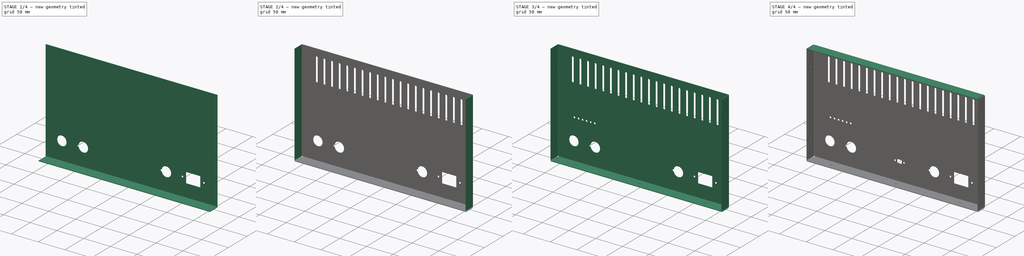
[diagram: build sequence overview — one tinted view per stage of 4, left to right]
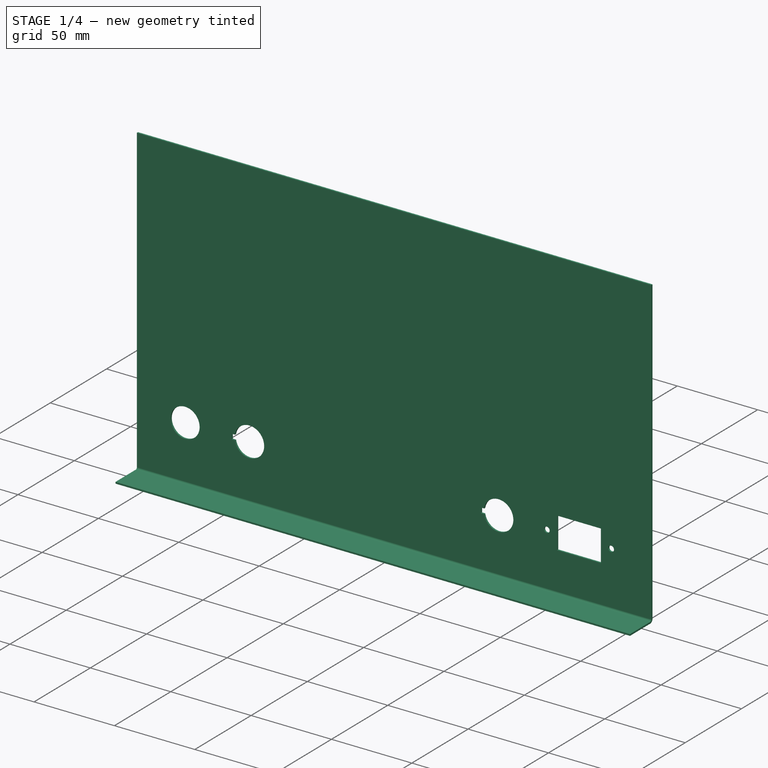
[diagram: stage 1 of 4 — iso view after this stage's code; geometry added in this stage tinted green]
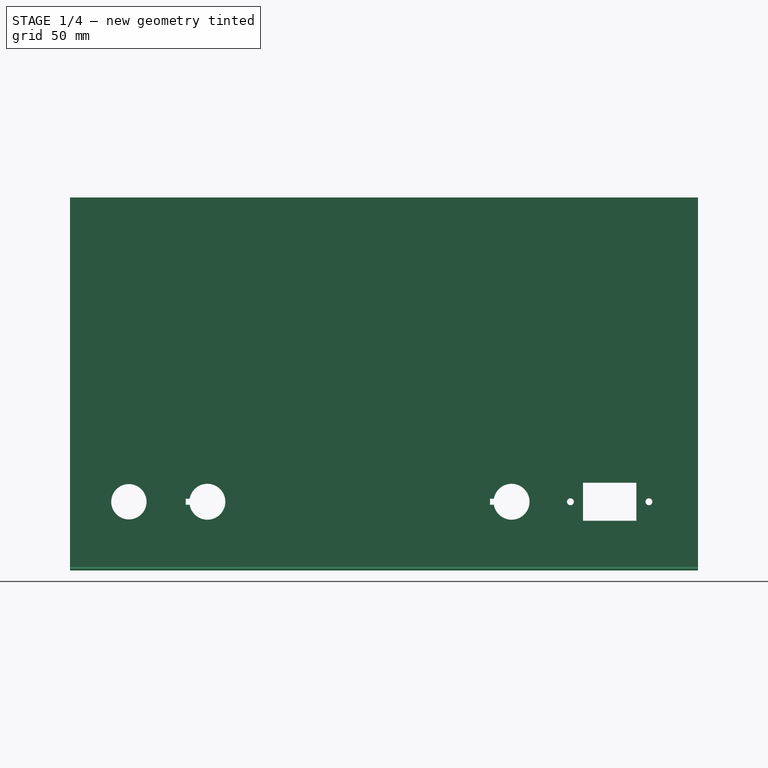
[diagram: stage 1 of 4 — front view after this stage's code; geometry added in this stage tinted green]
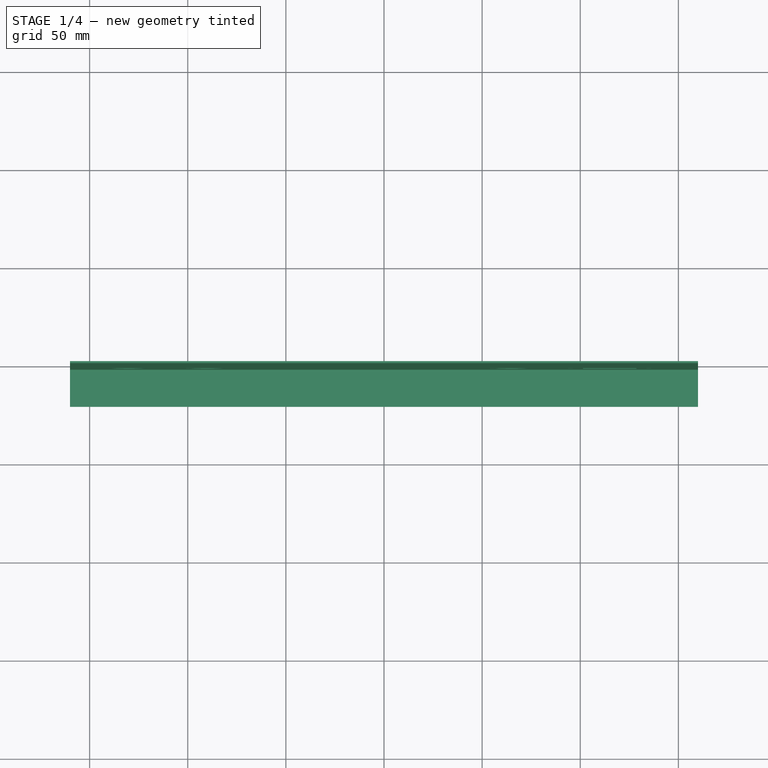
[diagram: stage 1 of 4 — top view after this stage's code; geometry added in this stage tinted green]
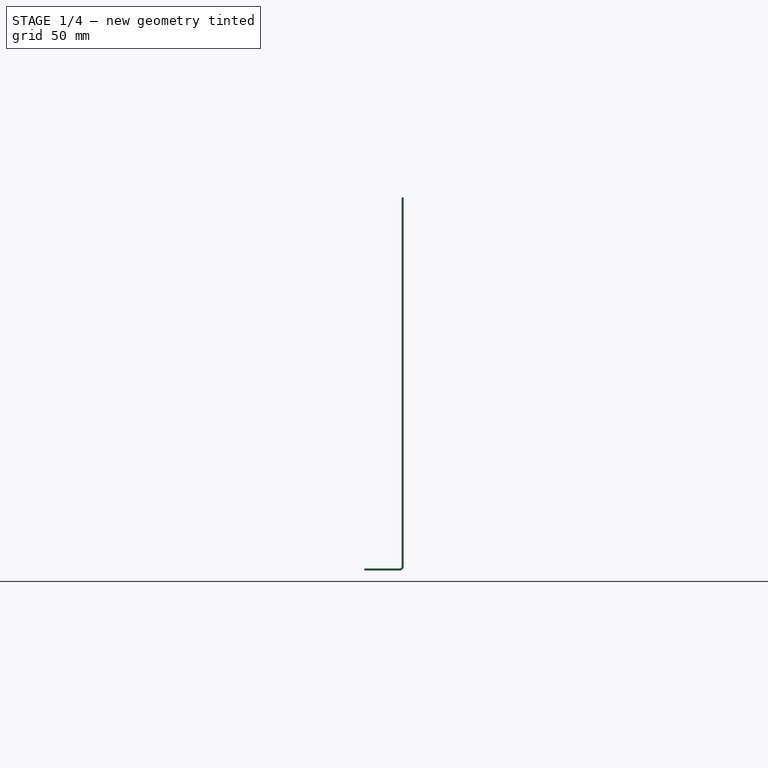
[diagram: stage 1 of 4 — right view after this stage's code; geometry added in this stage tinted green]
FCSTD DOCUMENT  (FreeCAD 1.0R39109 (Git))
Label: SEVER_BEDNA_ZP_320mm
License: All rights reserved
LicenseURL: http://en.wikipedia.org/wiki/All_rights_reserved
objects: Sketcher::SketchObject×6, PartDesign::Pocket×5, PartDesign::FeaturePython×3, PartDesign::Pad×1, PartDesign::LinearPattern×1, TechDraw::DrawSVGTemplate×1, TechDraw::DrawProjGroupItem×1, TechDraw::DrawPage×1, PartDesign::Body×1
note: 39 computed .brp shape members not serialized (recipe doc carries the construction recipe); baked Part::Feature solids carry a one-line shape summary decoded from their .brp

FEATURE [Sketcher::SketchObject] Sketch004  label="Sketch001"
  ArcFitTolerance = 1e-06
  FullyConstrained = true
  MakeInternals = false
  MapMode = 5
  Placement = pos=(0,198.5,-2.2e-14) rot=(0,0.707107,0.707107;3.14159rad)
  sketch-geometry (23):
    g0: Circle CenterX=130 CenterY=-60 CenterZ=0 NormalX=0 NormalY=0 NormalZ=1 AngleXU=0 Radius=9
    g1: LineSegment StartX=-128.6 StartY=-50.3 StartZ=0 EndX=-128.6 EndY=-69.7 EndZ=0
    g2: LineSegment StartX=-128.6 StartY=-69.7 StartZ=0 EndX=-101.4 EndY=-69.7 EndZ=0
    g3: LineSegment StartX=-101.4 StartY=-69.7 StartZ=0 EndX=-101.4 EndY=-50.3 EndZ=0
    g4: LineSegment StartX=-101.4 StartY=-50.3 StartZ=0 EndX=-128.6 EndY=-50.3 EndZ=0
    g5: LineSegment [constr] StartX=-115 StartY=-50.3 StartZ=0 EndX=-115 EndY=-69.7 EndZ=0
    g6: LineSegment [constr] StartX=-128.6 StartY=-60 StartZ=0 EndX=-101.4 EndY=-60 EndZ=0
    g7: Circle CenterX=-135 CenterY=-60 CenterZ=0 NormalX=0 NormalY=0 NormalZ=1 AngleXU=0 Radius=1.75
    g8: Circle CenterX=-95 CenterY=-60 CenterZ=0 NormalX=0 NormalY=0 NormalZ=1 AngleXU=0 Radius=1.75
    g9: ArcOfCircle CenterX=-65 CenterY=-60 CenterZ=0 NormalX=0 NormalY=0 NormalZ=1 AngleXU=0 Radius=9.15 StartAngle=0.17022 EndAngle=6.11297
    g10: LineSegment StartX=-55.9822 StartY=-61.55 StartZ=0 EndX=-54 EndY=-61.55 EndZ=0
    g11: LineSegment StartX=-54 StartY=-61.55 StartZ=0 EndX=-54 EndY=-58.45 EndZ=0
    g12: LineSegment StartX=-54 StartY=-58.45 StartZ=0 EndX=-55.9822 EndY=-58.45 EndZ=0
    g13: ArcOfCircle CenterX=90 CenterY=-60 CenterZ=0 NormalX=0 NormalY=0 NormalZ=1 AngleXU=0 Radius=9.15 StartAngle=0.17022 EndAngle=6.11297
    g14: LineSegment StartX=99.0178 StartY=-61.55 StartZ=0 EndX=101 EndY=-61.55 EndZ=0
    g15: LineSegment StartX=101 StartY=-61.55 StartZ=0 EndX=101 EndY=-58.45 EndZ=0
    g16: LineSegment StartX=101 StartY=-58.45 StartZ=0 EndX=99.0178 EndY=-58.45 EndZ=0
    g17: LineSegment StartX=-160 StartY=95 StartZ=0 EndX=-160 EndY=-95 EndZ=0
    g18: LineSegment StartX=-160 StartY=-95 StartZ=0 EndX=160 EndY=-95 EndZ=0
    g19: LineSegment StartX=160 StartY=-95 StartZ=0 EndX=160 EndY=95 EndZ=0
    g20: LineSegment StartX=160 StartY=95 StartZ=0 EndX=-160 EndY=95 EndZ=0
    g21: GeomPoint X=-54 Y=-60 Z=0
    g22: GeomPoint X=101 Y=-60 Z=0
  constraints (62):
    c: Coincident(g1,g2)
    c: Coincident(g2,g3)
    c: Coincident(g3,g4)
    c: Coincident(g4,g1)
    c: Vertical(g1)
    c: Vertical(g3)
    c: Horizontal(g2)
    c: Horizontal(g4)
    c: Symmetric(g4,g4,g5)
    c: Symmetric(g2,g2,g5)
    c: Symmetric(g1,g1,g6)
    c: Symmetric(g3,g3,g6)
    c: Equal(g7,g8)
    c: Symmetric(g7,g8,g5)
    c: Diameter(g7) = 3.5
    c: DistanceX(g7,g8) = 40
    c: DistanceX(g4,g4) = 27.2
    c: DistanceY(g3,g3) = 19.4
    c: Diameter(g0) = 18
    c: PointOnObject(g7,g6)
    c: Diameter(g9) = 18.3
    c: Coincident(g10,g11)
    c: Coincident(g11,g12)
    c: Horizontal(g10)
    c: Horizontal(g12)
    c: DistanceY(g11,g11) = 3.1
    c: Coincident(g9,g12)
    c: Coincident(g9,g10)
    c: Coincident(g14,g15)
    c: Coincident(g15,g16)
    c: Horizontal(g14)
    c: Horizontal(g16)
    c: Coincident(g13,g16)
    c: Coincident(g14,g13)
    c: Equal(g13,g9)
    c: Equal(g16,g12)
    c: Equal(g15,g11)
    c: DistanceX(g9,g11) = 11
    c: Coincident(g17,g18)
    c: Coincident(g18,g19)
    c: Coincident(g19,g20)
    c: Coincident(g20,g17)
    c: Vertical(g17)
    c: Horizontal(g18)
    c: Distance(g0,g18) = 35
    c: DistanceX(g20,g20) = 320
    c: DistanceY(g17,g17) = 190
    c: Symmetric(g17,g19,g-2)
    c: Symmetric(g19,g18,g-1)
    c: DistanceX(g13,g0) = 40
    c: Symmetric(g11,g11,g21)
    c: Horizontal(g9,g21)
    c: Symmetric(g15,g15,g22)
    c: Horizontal(g13,g22)
    c: Horizontal(g13,g0)
    c: Horizontal(g0,g9)
    c: Vertical(g11)
    c: Vertical(g15)
    c: Horizontal(g9,g7)
    c: DistanceX(g8,g9) = 30
    c: Distance(g7,g17) = 25
    c: Distance(g0,g19) = 30
FEATURE [PartDesign::Pad] Pad
  Direction = (1e-16,1,-2e-16)
  Length = 1
  Length2 = 10
  Placement = pos=(0,198.5,-2.2e-14) rot=(0,0.707107,0.707107;3.14159rad)
  Profile = -> Sketch004
  ReferenceAxis = -> Sketch004 [N_Axis]
  Suppressed = false
  Type = 0
FEATURE [PartDesign::FeaturePython] Bend  # WARN: FeaturePython — macro-defined, semantics opaque (R4)
  AngleFaceRefMode = false
  AutoMiter = false
  BaseFeature = -> Pad
  BendType = 1
  LengthList = [20]
  LengthSpec = 1
  NonperforationMaxLength = 5
  OffsetFaceRefMode = false
  OffsetType = 1
  OffsetTypeOffset = 0
  Perforate = false
  PerforationAngle = 0
  PerforationInitialLength = 5
  PerforationMaxLength = 5
  RelativeAngleToRef = 0
  ReliefFactor = 0.7
  SupplAngleRef = false
  Suppressed = false
  UseReliefFactor = false
  angle = 90
  baseObject = -> Pad [Edge6]
  bendAList = [90]
  extend1 = 0
  extend2 = 0
  gap1 = 0
  gap2 = 0
  invert = false
  kfactor = 0.5
  length = 20
  maxExtendDist = 5
  minGap = 0.2
  minReliefGap = 1
  miterangle1 = 0
  miterangle2 = 0
  offset = 0
  radius = 1
  reliefType = 0
  reliefd = 1
  reliefw = 0.8
  sketchflip = false
  sketchinvert = false
  unfold = false
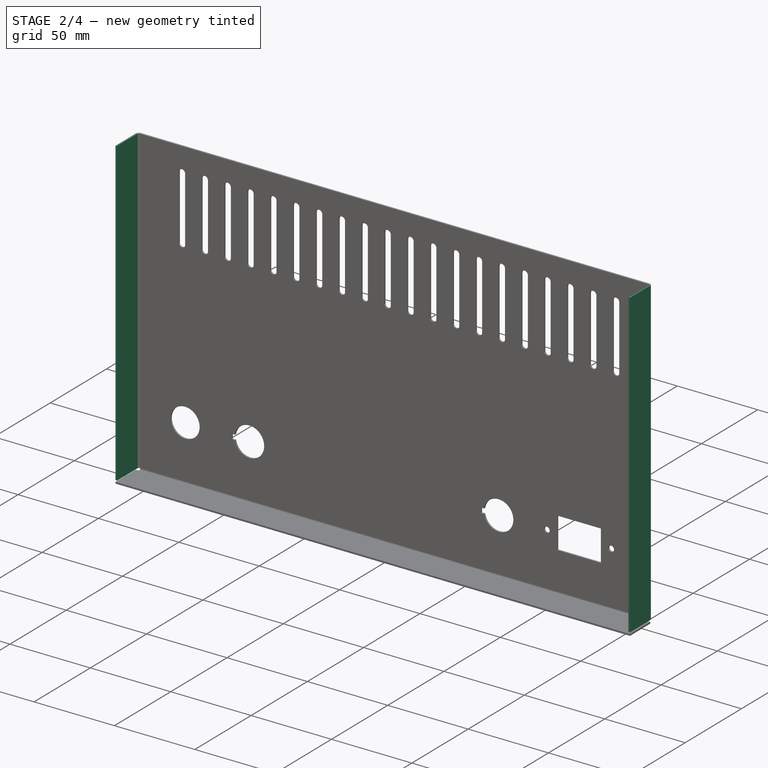
[diagram: stage 2 of 4 — iso view after this stage's code; geometry added in this stage tinted green]
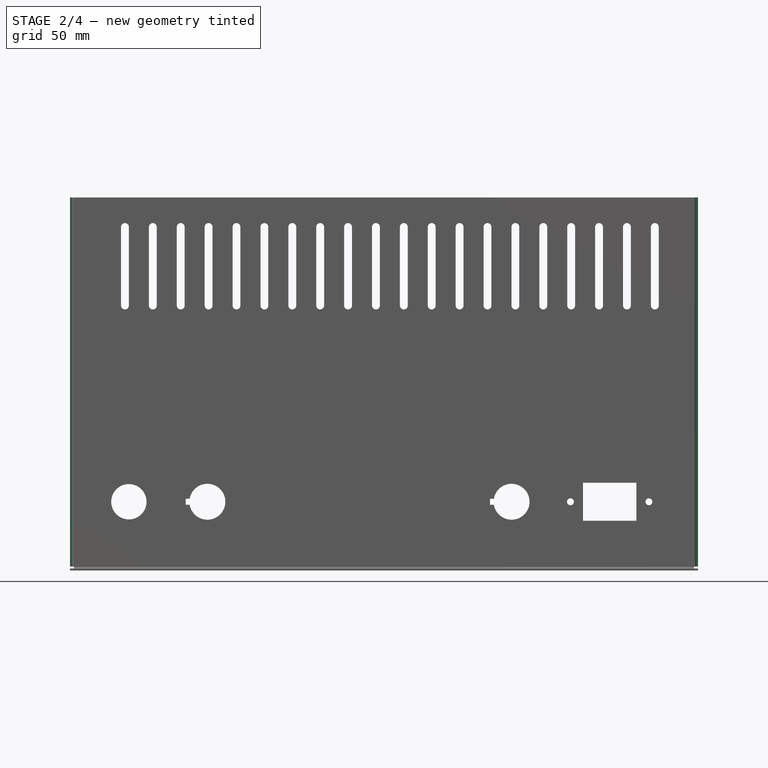
[diagram: stage 2 of 4 — front view after this stage's code; geometry added in this stage tinted green]
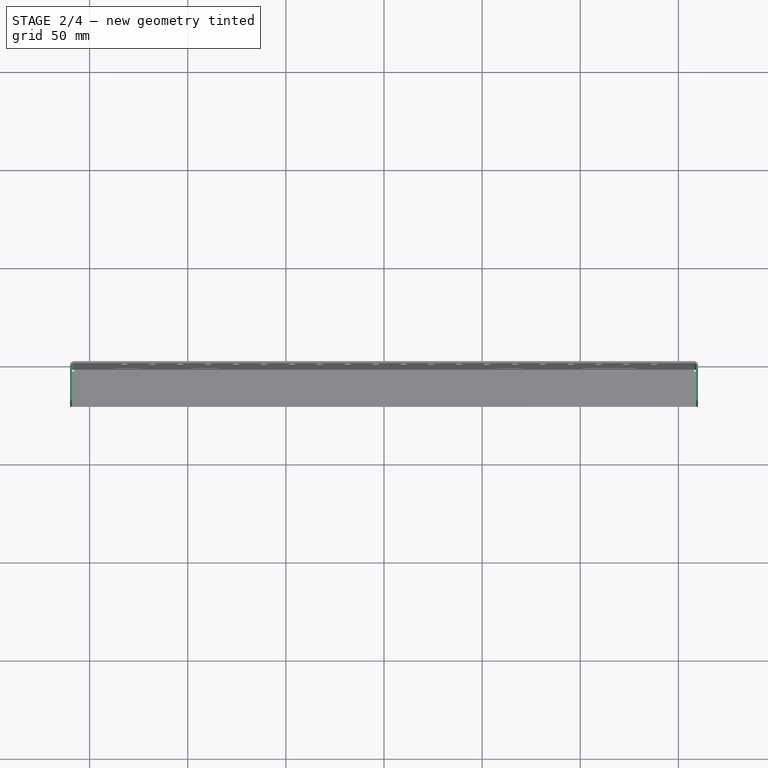
[diagram: stage 2 of 4 — top view after this stage's code; geometry added in this stage tinted green]
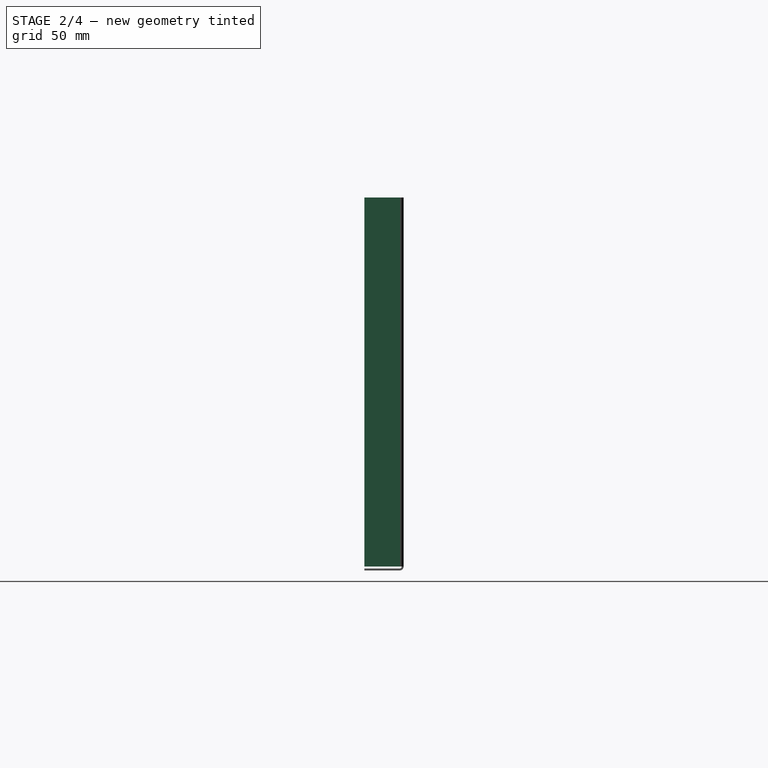
[diagram: stage 2 of 4 — right view after this stage's code; geometry added in this stage tinted green]
FEATURE [PartDesign::FeaturePython] Bend001  # WARN: FeaturePython — macro-defined, semantics opaque (R4)
  AngleFaceRefMode = false
  AutoMiter = false
  BaseFeature = -> Bend
  BendType = 1
  LengthList = [20]
  LengthSpec = 1
  NonperforationMaxLength = 5
  OffsetFaceRefMode = false
  OffsetType = 1
  OffsetTypeOffset = 0
  Perforate = false
  PerforationAngle = 0
  PerforationInitialLength = 5
  PerforationMaxLength = 5
  RelativeAngleToRef = 0
  ReliefFactor = 0.7
  SupplAngleRef = false
  Suppressed = false
  UseReliefFactor = false
  angle = 90
  baseObject = -> Bend [Edge1,Edge6]
  bendAList = [90]
  extend1 = 0
  extend2 = 0
  gap1 = 0
  gap2 = 0
  invert = false
  kfactor = 0.5
  length = 20
  maxExtendDist = 5
  minGap = 0.2
  minReliefGap = 1
  miterangle1 = 0
  miterangle2 = 0
  offset = 0
  radius = 1
  reliefType = 0
  reliefd = 1
  reliefw = 0.8
  sketchflip = false
  sketchinvert = false
  unfold = false
FEATURE [Sketcher::SketchObject] Sketch
  ArcFitTolerance = 1e-06
  AttachmentSupport = -> [Bend001]
  ExternalGeometry = -> [Bend001]
  FullyConstrained = true
  MakeInternals = false
  MapMode = 5
  Placement = pos=(0,199.5,0) rot=(0,0.707107,0.707107;3.14159rad)
  sketch-geometry (4):
    g0: ArcOfCircle CenterX=-138 CenterY=80 CenterZ=0 NormalX=0 NormalY=0 NormalZ=1 AngleXU=0 Radius=2 StartAngle=0 EndAngle=3.14159
    g1: ArcOfCircle CenterX=-138 CenterY=40 CenterZ=0 NormalX=0 NormalY=0 NormalZ=1 AngleXU=0 Radius=2 StartAngle=3.14159 EndAngle=6.28319
    g2: LineSegment StartX=-136 StartY=80 StartZ=0 EndX=-136 EndY=40 EndZ=0
    g3: LineSegment StartX=-140 StartY=80 StartZ=0 EndX=-140 EndY=40 EndZ=0
  constraints (10):
    c: Tangent(g0,g2) = 1.5708
    c: Tangent(g0,g3) = -1.5708
    c: Tangent(g1,g2) = 1.5708
    c: Tangent(g1,g3) = -1.5708
    c: Equal(g0,g1)
    c: Vertical(g3)
    c: Radius(g0) = 2
    c: Distance(g0,g-3) = 15
    c: DistanceY(g1,g0) = 40
    c: Distance(g1,g-4) = 20
FEATURE [PartDesign::Pocket] Pocket
  BaseFeature = -> Bend001
  Direction = (0,-1,2e-16)
  Length = 5
  Length2 = 5
  Profile = -> Sketch
  ReferenceAxis = -> Sketch [N_Axis]
  Suppressed = false
  Type = 0
FEATURE [PartDesign::LinearPattern] LinearPattern
  BaseFeature = -> Pocket
  Direction = -> Sketch [H_Axis]
  Length = 270
  Mode = 0
  Occurrences = 20
  Offset = 14.2105
  Originals = -> [Pocket]
  Suppressed = false
  TransformMode = 0
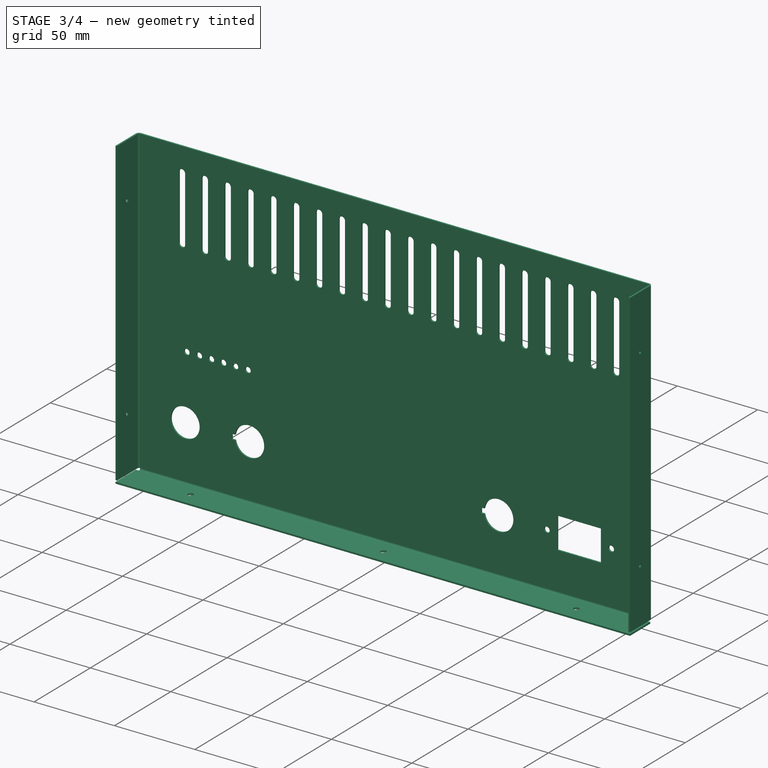
[diagram: stage 3 of 4 — iso view after this stage's code; geometry added in this stage tinted green]
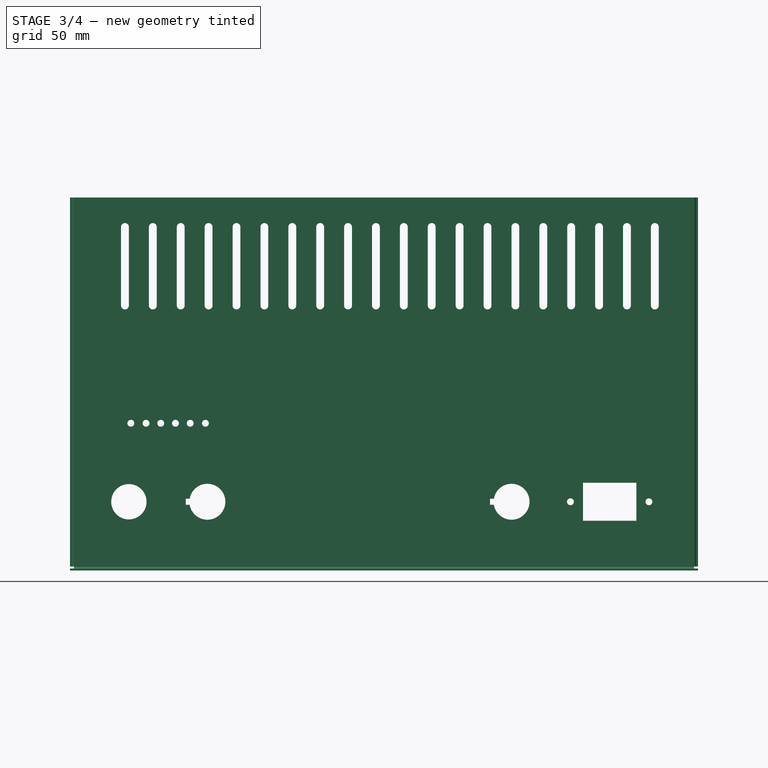
[diagram: stage 3 of 4 — front view after this stage's code; geometry added in this stage tinted green]
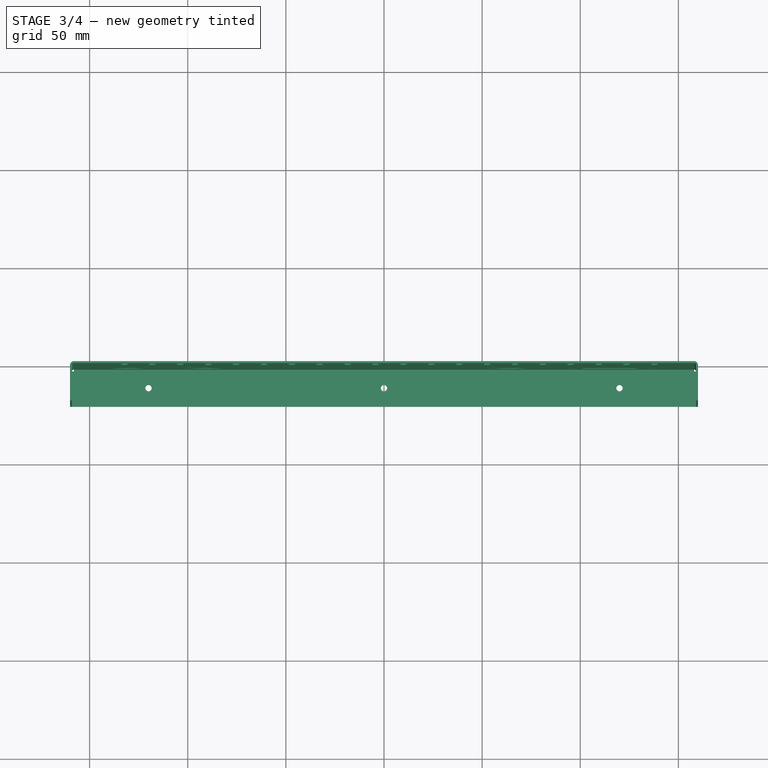
[diagram: stage 3 of 4 — top view after this stage's code; geometry added in this stage tinted green]
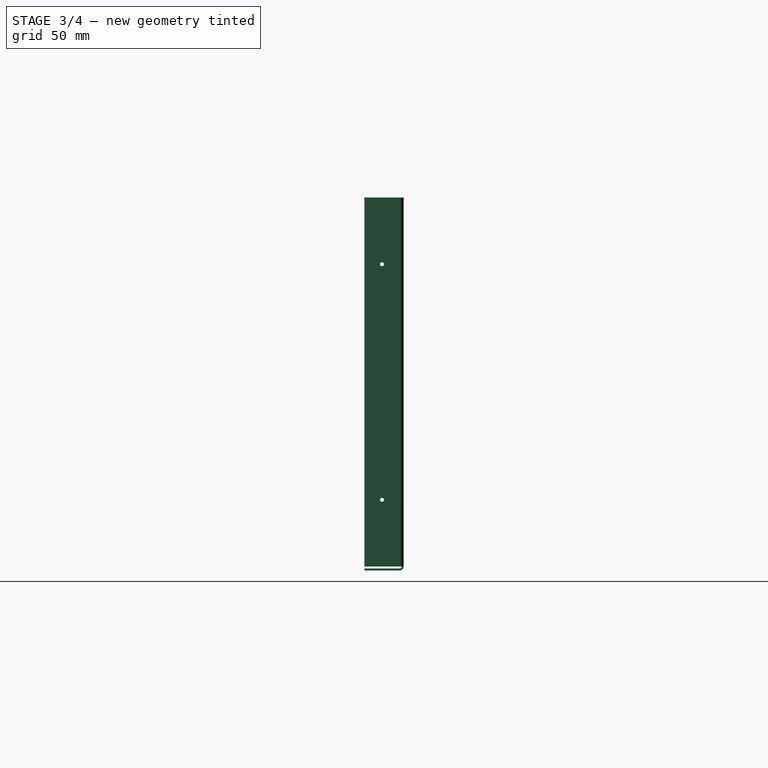
[diagram: stage 3 of 4 — right view after this stage's code; geometry added in this stage tinted green]
FEATURE [Sketcher::SketchObject] Sketch005
  ArcFitTolerance = 1e-06
  AttachmentSupport = -> [LinearPattern]
  ExternalGeometry = -> [LinearPattern]
  FullyConstrained = true
  MakeInternals = false
  MapMode = 5
  Placement = pos=(0,0,-94) rot=(0,0,1;0rad)
  sketch-geometry (4):
    g0: LineSegment [constr] StartX=-160 StartY=189 StartZ=0 EndX=160 EndY=189 EndZ=0
    g1: Circle CenterX=9.15e-14 CenterY=189 CenterZ=0 NormalX=0 NormalY=0 NormalZ=1 AngleXU=0 Radius=1.6
    g2: Circle CenterX=-120 CenterY=189 CenterZ=0 NormalX=0 NormalY=0 NormalZ=1 AngleXU=0 Radius=1.6
    g3: Circle CenterX=120 CenterY=189 CenterZ=0 NormalX=0 NormalY=0 NormalZ=1 AngleXU=0 Radius=1.6
  constraints (11):
    c: PointOnObject(g0,g-3)
    c: PointOnObject(g0,g-5)
    c: Horizontal(g0)
    c: DistanceY(g0,g-5) = 8.5
    c: Symmetric(g0,g0,g1)
    c: PointOnObject(g2,g0)
    c: Symmetric(g2,g3,g-2)
    c: DistanceX(g2,g1) = 120
    c: Equal(g2,g1)
    c: Equal(g1,g3)
    c: Diameter(g1) = 3.2
FEATURE [PartDesign::Pocket] Pocket001
  BaseFeature = -> LinearPattern
  Direction = (0,0,-1)
  Length = 5
  Length2 = 5
  Profile = -> Sketch005
  ReferenceAxis = -> Sketch005 [N_Axis]
  Suppressed = false
  Type = 1
FEATURE [Sketcher::SketchObject] Sketch006
  ArcFitTolerance = 1e-06
  AttachmentSupport = -> [Pocket001]
  ExternalGeometry = -> [Pocket001]
  FullyConstrained = true
  MakeInternals = false
  MapMode = 5
  Placement = pos=(160,0,0) rot=(0.57735,0.57735,0.57735;2.0944rad)
  sketch-geometry (4):
    g0: LineSegment [constr] StartX=188.5 StartY=95 StartZ=0 EndX=188.5 EndY=-93 EndZ=0
    g1: GeomPoint [constr] X=188.5 Y=1 Z=0
    g2: Circle CenterX=188.5 CenterY=-59 CenterZ=0 NormalX=0 NormalY=0 NormalZ=1 AngleXU=0 Radius=1
    g3: Circle CenterX=188.5 CenterY=61 CenterZ=0 NormalX=0 NormalY=0 NormalZ=1 AngleXU=0 Radius=1
  constraints (8):
    c: Symmetric(g-3,g-3,g0)
    c: Symmetric(g-4,g-4,g0)
    c: Symmetric(g0,g0,g1)
    c: PointOnObject(g2,g0)
    c: Symmetric(g3,g2,g1)
    c: DistanceY(g2,g3) = 120
    c: Diameter(g3) = 2
    c: Equal(g3,g2)
FEATURE [PartDesign::Pocket] Pocket002
  BaseFeature = -> Pocket001
  Direction = (-1,0,0)
  Length = 5
  Length2 = 5
  Midplane = true
  Profile = -> Sketch006
  ReferenceAxis = -> Sketch006 [N_Axis]
  Suppressed = false
  Type = 1
FEATURE [Sketcher::SketchObject] Sketch007
  ArcFitTolerance = 1e-06
  AttachmentSupport = -> [Pocket002]
  ExternalGeometry = -> [Pocket002]
  FullyConstrained = true
  MakeInternals = false
  MapMode = 5
  Placement = pos=(0,199.5,0) rot=(0,0.707107,0.707107;3.14159rad)
  sketch-geometry (8):
    g0: LineSegment [constr] StartX=90 StartY=-60 StartZ=0 EndX=130 EndY=-60 EndZ=0
    g1: LineSegment [constr] StartX=110 StartY=-60 StartZ=0 EndX=110 EndY=-20 EndZ=0
    g2: Circle CenterX=98.75 CenterY=-20 CenterZ=0 NormalX=0 NormalY=0 NormalZ=1 AngleXU=0 Radius=1.75
    g3: Circle CenterX=91 CenterY=-20 CenterZ=0 NormalX=0 NormalY=0 NormalZ=1 AngleXU=0 Radius=1.75
    g4: Circle CenterX=121.25 CenterY=-20 CenterZ=0 NormalX=0 NormalY=0 NormalZ=1 AngleXU=0 Radius=1.75
    g5: Circle CenterX=129 CenterY=-20 CenterZ=0 NormalX=0 NormalY=0 NormalZ=1 AngleXU=0 Radius=1.75
    g6: Circle CenterX=106.25 CenterY=-20 CenterZ=0 NormalX=0 NormalY=0 NormalZ=1 AngleXU=0 Radius=1.75
    g7: Circle CenterX=113.75 CenterY=-20 CenterZ=0 NormalX=0 NormalY=0 NormalZ=1 AngleXU=0 Radius=1.75
  constraints (21):
    c: Coincident(g0,g-3)
    c: Coincident(g0,g-4)
    c: Symmetric(g0,g0,g1)
    c: DistanceX(g3,g5) = 38
    c: Symmetric(g3,g5,g1)
    c: Horizontal(g2,g6)
    c: Horizontal(g7,g4)
    c: Horizontal(g4,g5)
    c: DistanceX(g2,g6) = 7.5
    c: DistanceX(g7,g4) = 7.5
    c: Equal(g3,g2)
    c: Equal(g2,g6)
    c: Equal(g6,g7)
    c: Equal(g7,g4)
    c: Equal(g4,g5)
    c: Diameter(g3) = 3.5
    c: DistanceY(g1,g1) = 40
    c: Horizontal(g3,g1)
    c: Vertical(g1)
    c: Symmetric(g6,g7,g1)
    c: DistanceX(g6,g7) = 7.5
FEATURE [PartDesign::Pocket] Pocket003
  BaseFeature = -> Pocket002
  Direction = (0,-1,2e-16)
  Length = 5
  Length2 = 5
  Profile = -> Sketch007
  ReferenceAxis = -> Sketch007 [N_Axis]
  Suppressed = false
  Type = 0
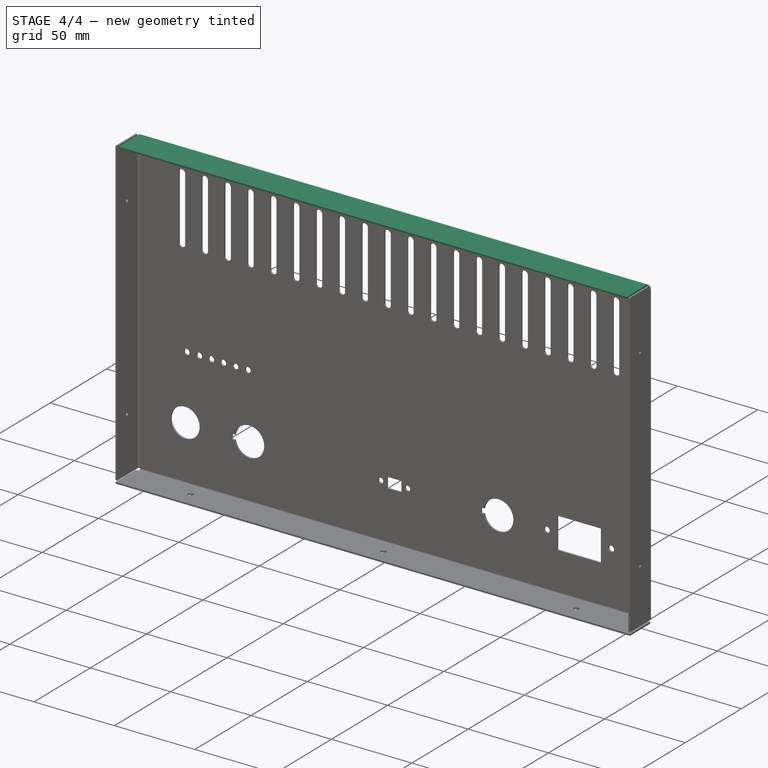
[diagram: stage 4 of 4 — iso view after this stage's code; geometry added in this stage tinted green]
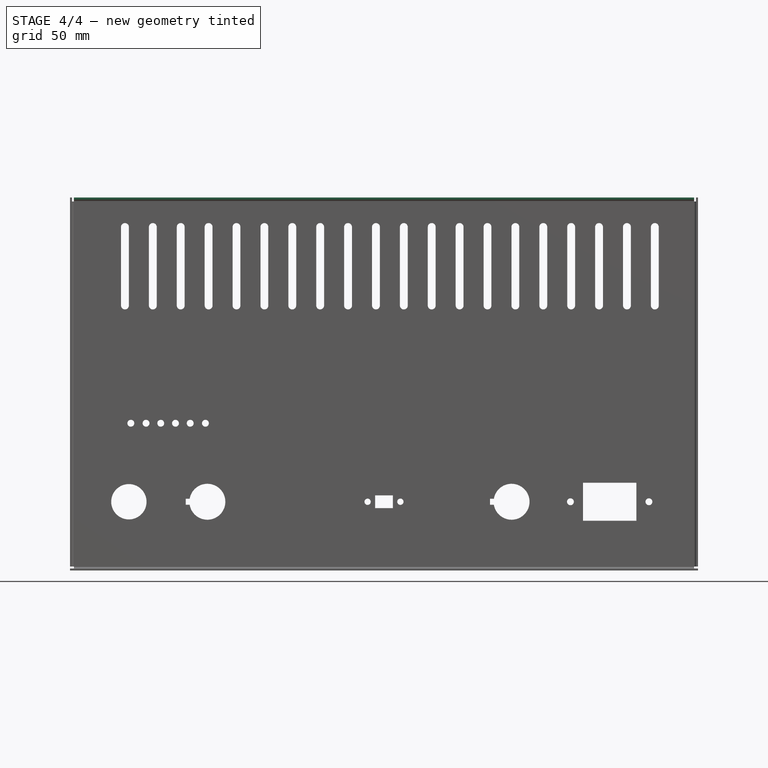
[diagram: stage 4 of 4 — front view after this stage's code; geometry added in this stage tinted green]
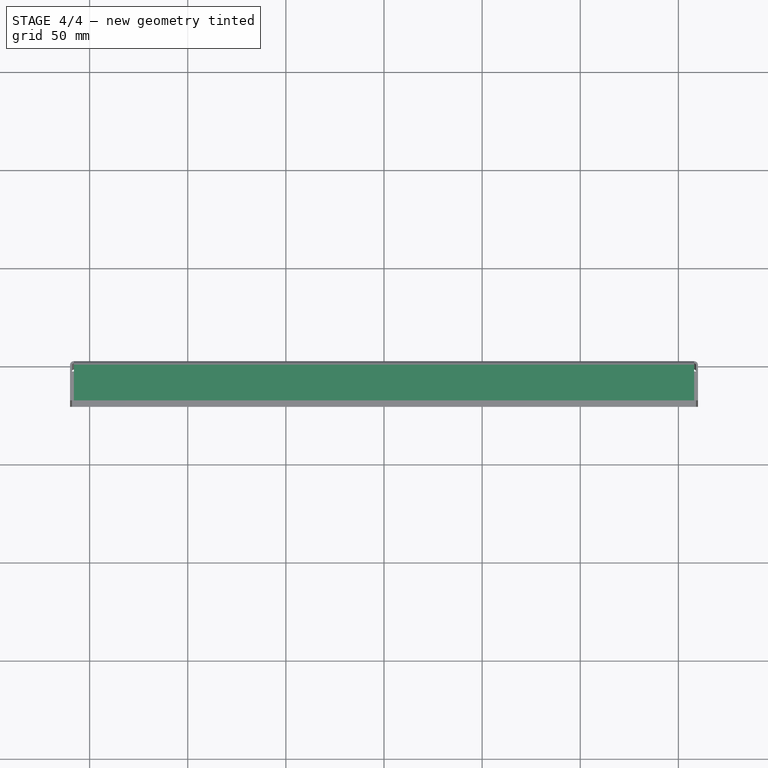
[diagram: stage 4 of 4 — top view after this stage's code; geometry added in this stage tinted green]
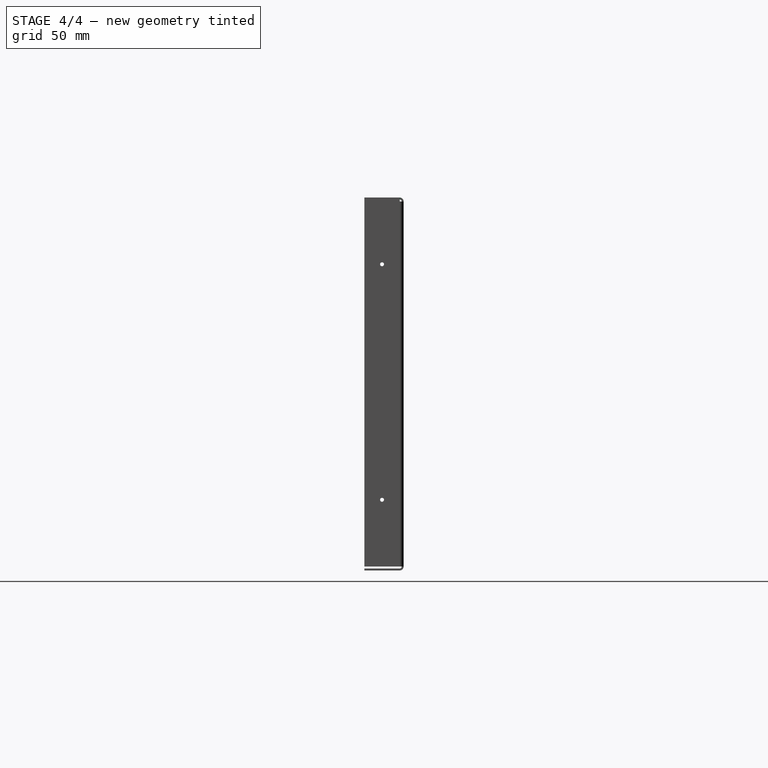
[diagram: stage 4 of 4 — right view after this stage's code; geometry added in this stage tinted green]
FEATURE [TechDraw::DrawSVGTemplate] Template  label="Šablona"
  Height = 297
  Orientation = 1
  Template = C:/Program Files/FreeCAD 1.0/data/Mod/TechDraw/Templates/A3_Landscape_blank.svg
  Width = 420
FEATURE [TechDraw::DrawProjGroupItem] View
  CoarseView = false
  Direction = (-2e-16,1,0)
  Focus = 100
  HardHidden = false
  IsoCount = 0
  IsoHidden = false
  IsoVisible = false
  LockPosition = false
  Perspective = false
  Rotation = 0
  RotationVector = (1,0,0)
  ScaleType = 0
  ScrubCount = 1
  SeamHidden = false
  SeamVisible = false
  SmoothHidden = false
  SmoothVisible = true
  Source = -> [Pocket003]
  Type = 0
  X = 210
  XDirection = (-1,-2e-16,2e-16)
  Y = 148.5
FEATURE [TechDraw::DrawPage] Page  label="Stránka"
  KeepUpdated = true
  NextBalloonIndex = 1
  ProjectionType = 0
  Template = -> Template
  Views = -> [View]
FEATURE [Sketcher::SketchObject] Sketch008
  ArcFitTolerance = 1e-06
  AttachmentSupport = -> [Pocket003]
  ExternalGeometry = -> [Pocket003]
  FullyConstrained = true
  MakeInternals = false
  MapMode = 5
  Placement = pos=(0,199.5,0) rot=(0,0.707107,0.707107;3.14159rad)
  sketch-geometry (7):
    g0: LineSegment StartX=-4.5 StartY=-56.75 StartZ=0 EndX=-4.5 EndY=-63.25 EndZ=0
    g1: LineSegment StartX=-4.5 StartY=-63.25 StartZ=0 EndX=4.5 EndY=-63.25 EndZ=0
    g2: LineSegment StartX=4.5 StartY=-63.25 StartZ=0 EndX=4.5 EndY=-56.75 EndZ=0
    g3: LineSegment StartX=4.5 StartY=-56.75 StartZ=0 EndX=-4.5 EndY=-56.75 EndZ=0
    g4: GeomPoint [constr] X=-4.5 Y=-60 Z=0
    g5: Circle CenterX=-8.35 CenterY=-60 CenterZ=0 NormalX=0 NormalY=0 NormalZ=1 AngleXU=0 Radius=1.6
    g6: Circle CenterX=8.35 CenterY=-60 CenterZ=0 NormalX=0 NormalY=0 NormalZ=1 AngleXU=0 Radius=1.6
  constraints (19):
    c: Coincident(g0,g1)
    c: Coincident(g1,g2)
    c: Coincident(g2,g3)
    c: Coincident(g3,g0)
    c: Vertical(g0)
    c: Vertical(g2)
    c: Horizontal(g1)
    c: Symmetric(g0,g0,g4)
    c: Symmetric(g0,g2,g-2)
    c: DistanceX(g3,g3) = 9
    c: DistanceY(g2,g2) = 6.5
    c: Horizontal(g5,g4)
    c: Symmetric(g5,g6,g-2)
    c: DistanceX(g5,g6) = 16.7
    c: Diameter(g6) = 3.2
    c: Horizontal(g4,g-4)
    c: Equal(g6,g5)
    c: Distance(g-3,g-2) = 158
    c: DistanceX(g-1,g-3) = 158
FEATURE [PartDesign::Pocket] Pocket004
  BaseFeature = -> Pocket003
  Direction = (0,-1,2e-16)
  Length = 5
  Length2 = 5
  Profile = -> Sketch008
  ReferenceAxis = -> Sketch008 [N_Axis]
  Suppressed = false
  Type = 1
FEATURE [PartDesign::FeaturePython] Bend002  # WARN: FeaturePython — macro-defined, semantics opaque (R4)
  AngleFaceRefMode = false
  AutoMiter = false
  BaseFeature = -> Pocket004
  BendType = 1
  LengthList = [20]
  LengthSpec = 1
  NonperforationMaxLength = 5
  OffsetFaceRefMode = false
  OffsetType = 1
  OffsetTypeOffset = 0
  Perforate = false
  PerforationAngle = 0
  PerforationInitialLength = 5
  PerforationMaxLength = 5
  RelativeAngleToRef = 0
  ReliefFactor = 0.7
  SupplAngleRef = false
  Suppressed = false
  UseReliefFactor = false
  angle = 90
  baseObject = -> Pocket004 [Edge4]
  bendAList = [90]
  extend1 = 0
  extend2 = 0
  gap1 = 0
  gap2 = 0
  invert = false
  kfactor = 0.5
  length = 20
  maxExtendDist = 5
  minGap = 0.2
  minReliefGap = 1
  miterangle1 = 0
  miterangle2 = 0
  offset = 0
  radius = 1
  reliefType = 0
  reliefd = 1
  reliefw = 0.8
  sketchflip = false
  sketchinvert = false
  unfold = false
FEATURE [PartDesign::Body] Body
  AllowCompound = false
  Group = -> [Sketch004,Pad,Bend,Bend001,Sketch,Pocket,LinearPattern,Sketch005,Pocket001,Sketch006,Pocket002,Sketch007,Pocket003,Sketch008,Pocket004,Bend002]
  Origin = -> Origin001
  Tip = -> Bend002
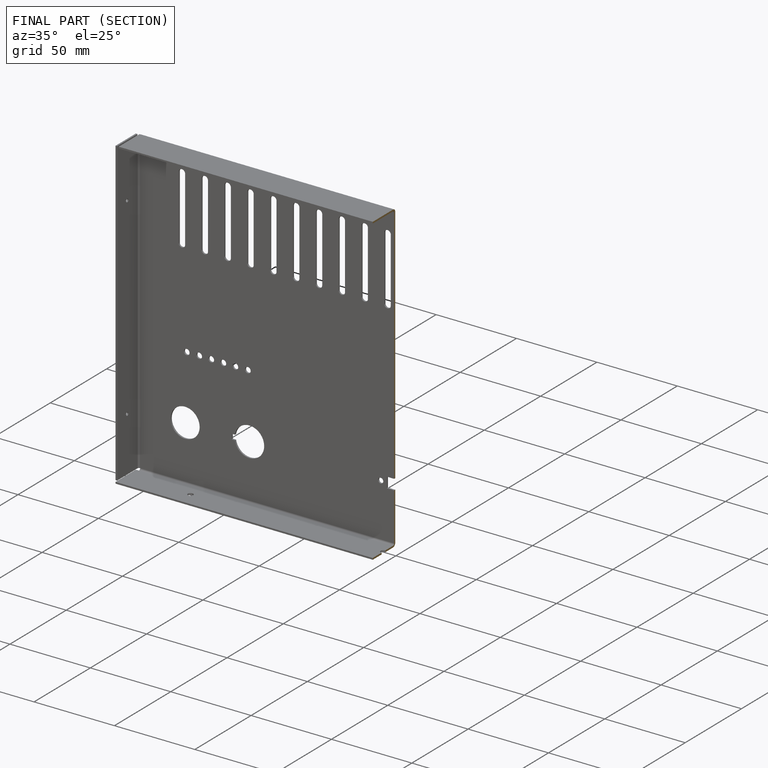
[diagram: finished part — half-section view (interior)]
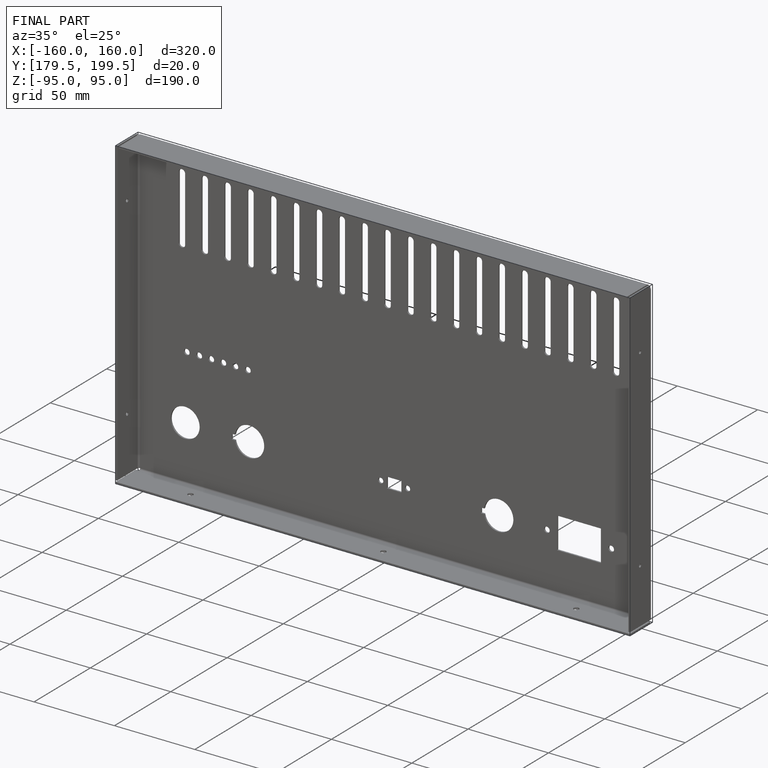
[diagram: finished part — iso view with bounding-box wireframe]
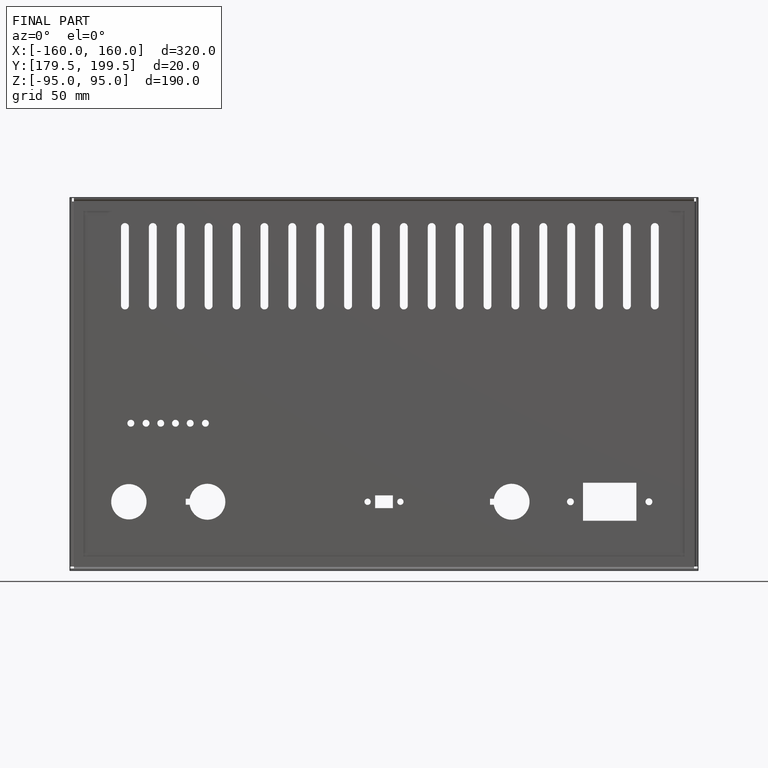
[diagram: finished part — front view with bounding-box wireframe]
